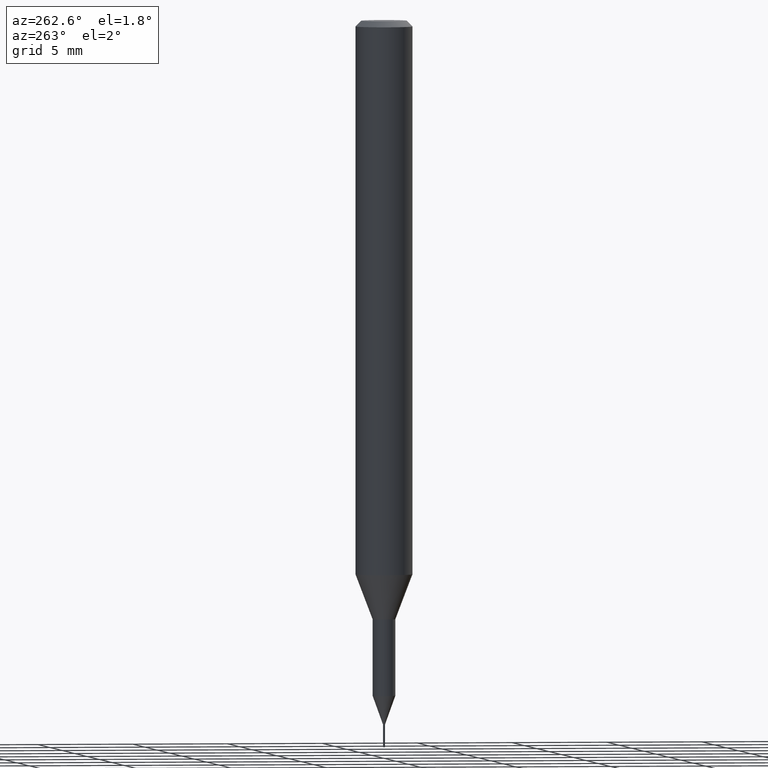
[diagram: clean part render]
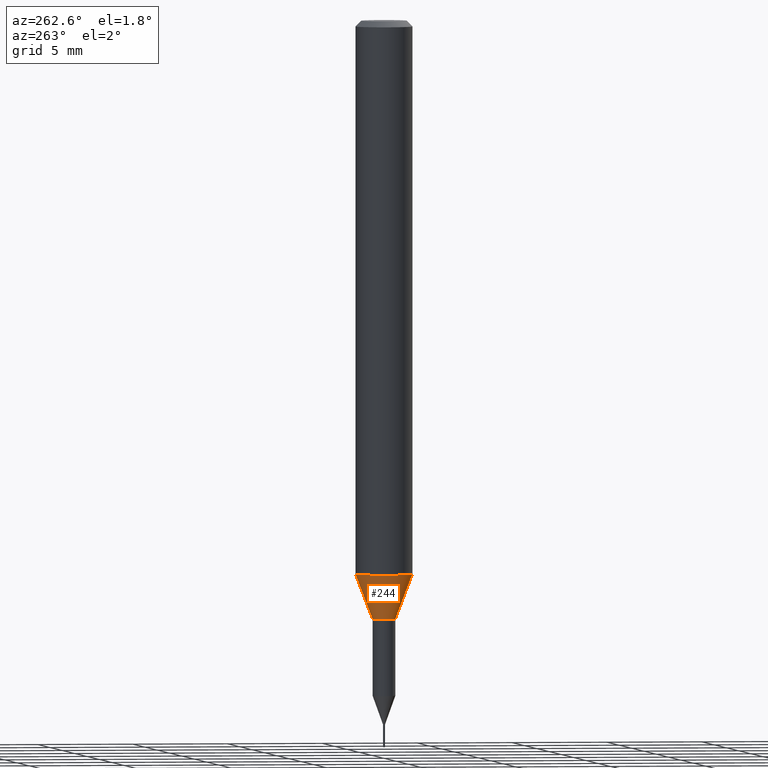
[diagram: same view with one face highlighted and labeled with its STEP entity id]
A machine part, auxiliary view. The second image highlights one B-rep face of the part: STEP entity #244.
In plain terms, the highlighted conical surface has half-angle 20.997 deg.
Its self-contained STEP definition (entity closure, byte-faithful):
#130=EDGE_CURVE('',#268,#214,#309,.T.);
#166=EDGE_CURVE('',#214,#172,#351,.T.);
#172=VERTEX_POINT('',#359);
#190=EDGE_CURVE('',#268,#206,#379,.T.);
#206=VERTEX_POINT('',#398);
#214=VERTEX_POINT('',#406);
#242=EDGE_CURVE('',#172,#206,#436,.T.);
#244=ADVANCED_FACE('',(#438),#439,.T.);
#268=VERTEX_POINT('',#466);
#309=LINE('',#508,#509);
#351=CIRCLE('',#560,1.5);
#359=CARTESIAN_POINT('',(0.0,1.5,-28.955));
#379=CIRCLE('',#596,0.6);
#398=CARTESIAN_POINT('',(0.0,0.6,-31.3));
#406=CARTESIAN_POINT('',(1.83690953073357E-016,-1.5,-28.955));
#436=LINE('',#670,#671);
#438=FACE_OUTER_BOUND('',#673,.T.);
#439=CONICAL_SURFACE('',#674,1.05,0.366459241971866);
#466=CARTESIAN_POINT('',(7.34763812293426E-017,-0.6,-31.3));
#508=CARTESIAN_POINT('',(1.2858366715135E-016,-1.05,-30.1275));
#509=VECTOR('',#735,1.0);
#560=AXIS2_PLACEMENT_3D('',#788,#789,#790);
#596=AXIS2_PLACEMENT_3D('',#828,#829,#830);
#670=CARTESIAN_POINT('',(-1.2858366715135E-016,1.05,-30.1275));
#671=VECTOR('',#893,1.0);
#673=EDGE_LOOP('',(#895,#896,#897,#898));
#674=AXIS2_PLACEMENT_3D('',#899,#900,#901);
#735=DIRECTION('',(4.38791184365088E-017,-0.358312026550805,0.93360189140182));
#788=CARTESIAN_POINT('',(0.0,0.0,-28.955));
#789=DIRECTION('',(0.0,0.0,-1.0));
#790=DIRECTION('',(0.0,1.0,0.0));
#828=CARTESIAN_POINT('',(0.0,0.0,-31.3));
#829=DIRECTION('',(0.0,0.0,-1.0));
#830=DIRECTION('',(0.0,1.0,0.0));
#893=DIRECTION('',(4.38791184365088E-017,-0.358312026550805,-0.93360189140182));
#895=ORIENTED_EDGE('',*,*,#242,.T.);
#896=ORIENTED_EDGE('',*,*,#190,.F.);
#897=ORIENTED_EDGE('',*,*,#130,.T.);
#898=ORIENTED_EDGE('',*,*,#166,.T.);
#899=CARTESIAN_POINT('',(0.0,0.0,-30.1275));
#900=DIRECTION('',(-0.0,-0.0,1.0));
#901=DIRECTION('',(0.0,1.0,0.0));